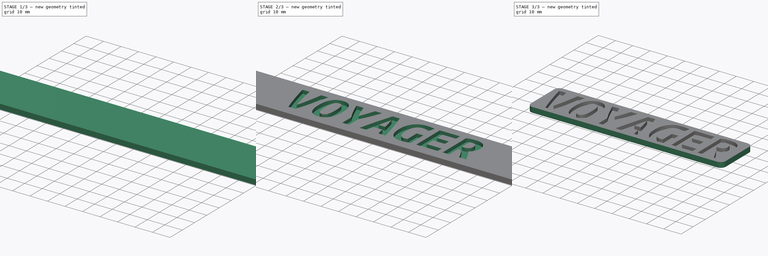
[diagram: build sequence overview — one tinted view per stage of 3, left to right]
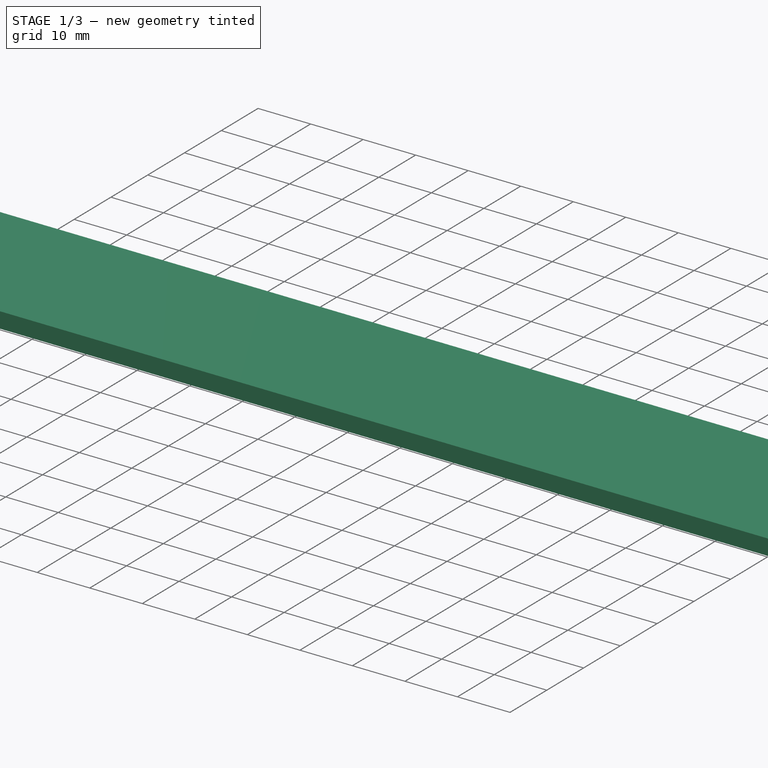
[diagram: stage 1 of 3 — iso view after this stage's code; geometry added in this stage tinted green]
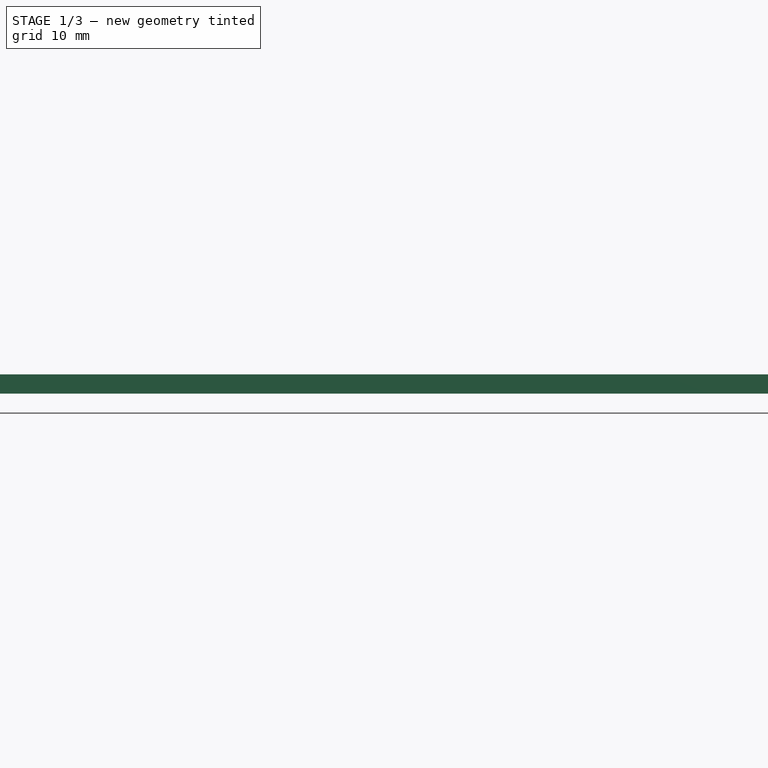
[diagram: stage 1 of 3 — front view after this stage's code; geometry added in this stage tinted green]
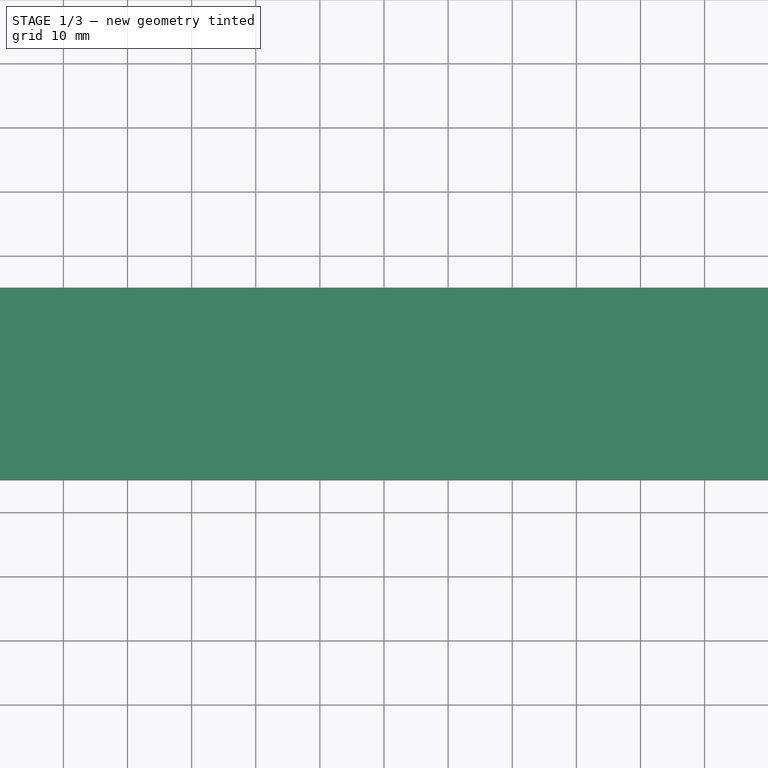
[diagram: stage 1 of 3 — top view after this stage's code; geometry added in this stage tinted green]
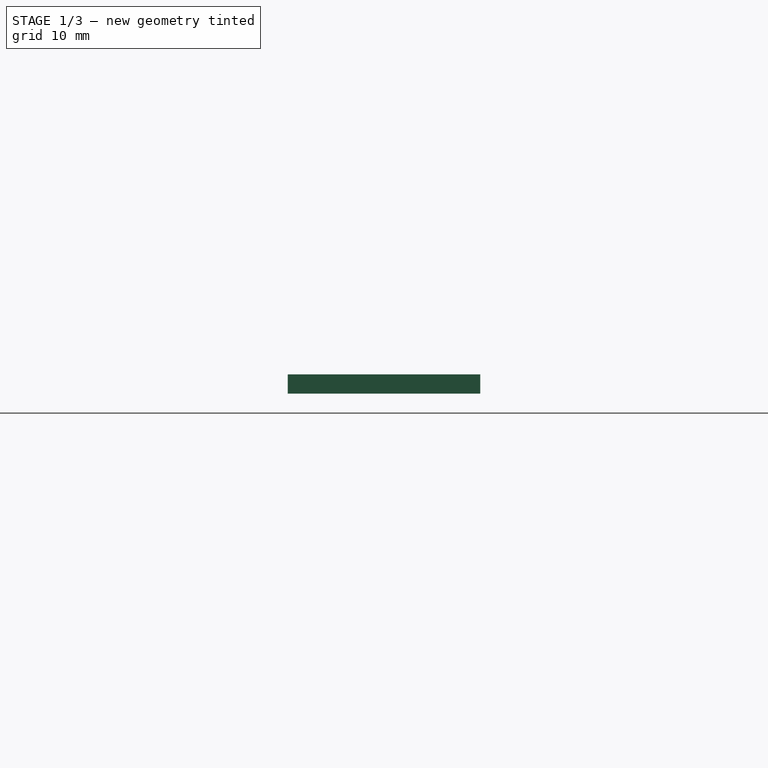
[diagram: stage 1 of 3 — right view after this stage's code; geometry added in this stage tinted green]
FCSTD DOCUMENT  (FreeCAD 1.1R44874 (Git))
Label: placa-Voyager
License: All rights reserved
LicenseURL: http://en.wikipedia.org/wiki/All_rights_reserved
objects: Sketcher::SketchObject×3, PartDesign::Pad×2, PartDesign::Body×2, App::Point×2, Part::Part2DObjectPython×1, Part::Extrusion×1, Part::Cut×1, PartDesign::FeatureBase×1, PartDesign::Pocket×1, PartDesign::Fillet×1
note: 25 computed .brp shape members not serialized (recipe doc carries the construction recipe); baked Part::Feature solids carry a one-line shape summary decoded from their .brp

FEATURE [Sketcher::SketchObject] Sketch
  ArcFitTolerance = 0
  AttachmentSupport = -> [XY_Plane]
  ExternalTypes = [0]
  FullyConstrained = true
  MakeInternals = false
  MapMode = 5
  _ExternalGeoVersion = 0
  sketch-geometry (4):
    g0: LineSegment StartX=-100 StartY=15 StartZ=0 EndX=100 EndY=15 EndZ=0
    g1: LineSegment StartX=100 StartY=15 StartZ=0 EndX=100 EndY=-15 EndZ=0
    g2: LineSegment StartX=100 StartY=-15 StartZ=0 EndX=-100 EndY=-15 EndZ=0
    g3: LineSegment StartX=-100 StartY=-15 StartZ=0 EndX=-100 EndY=15 EndZ=0
  constraints (10):
    c: Coincident(g0,g1)
    c: Coincident(g1,g2)
    c: Coincident(g2,g3)
    c: Coincident(g3,g0)
    c: Horizontal(g2)
    c: Vertical(g1)
    c: Symmetric(g0,g0,g-2)
    c: Symmetric(g2,g0,g-1)
    c: DistanceX(g2,g2) = 200
    c: DistanceY(g3,g3) = 30
FEATURE [PartDesign::Pad] Pad
  Direction = (0,0,1)
  Length = 2
  Length2 = 10
  Profile = -> Sketch
  ReferenceAxis = -> Sketch [N_Axis]
  SideType = 0
  Suppressed = false
  Type = 0
  Type2 = 0
FEATURE [PartDesign::Pad] Pad001
  BaseFeature = -> Pad
  Direction = (0,0,-1)
  Length = 1
  Length2 = 10
  Profile = -> Pad [Face5]
  SideType = 0
  Suppressed = false
  Type = 0
  Type2 = 0
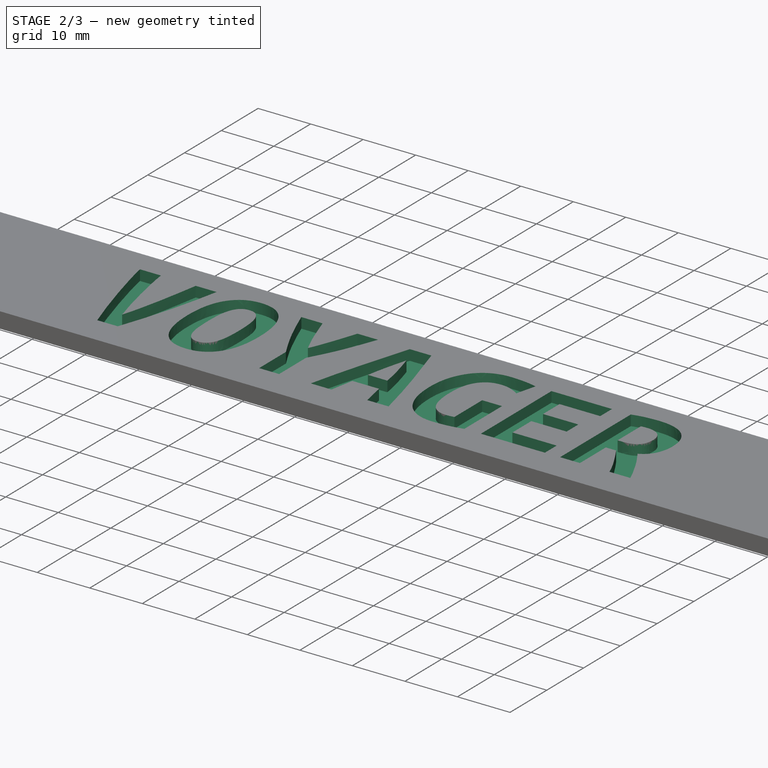
[diagram: stage 2 of 3 — iso view after this stage's code; geometry added in this stage tinted green]
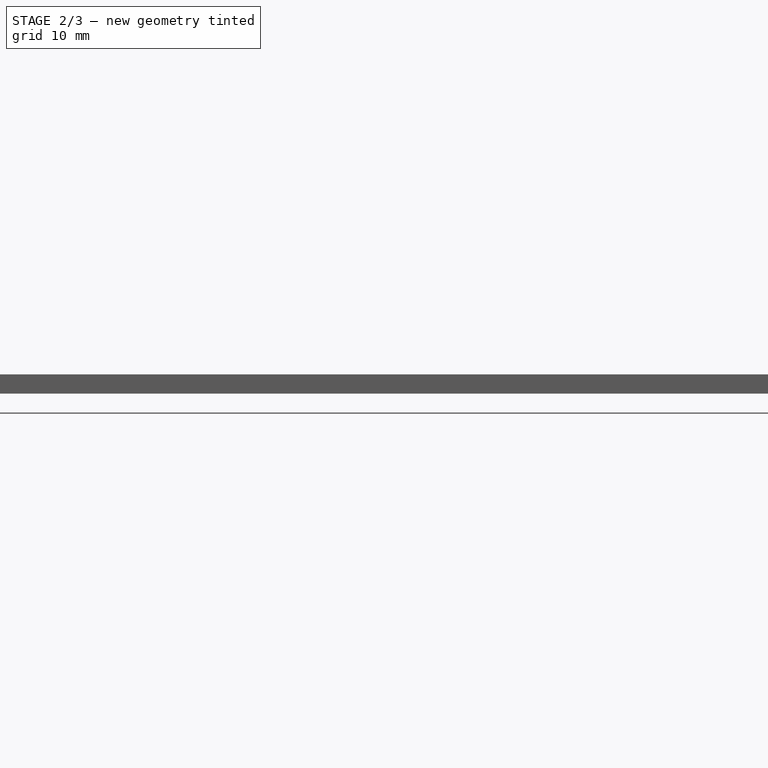
[diagram: stage 2 of 3 — front view after this stage's code; geometry added in this stage tinted green]
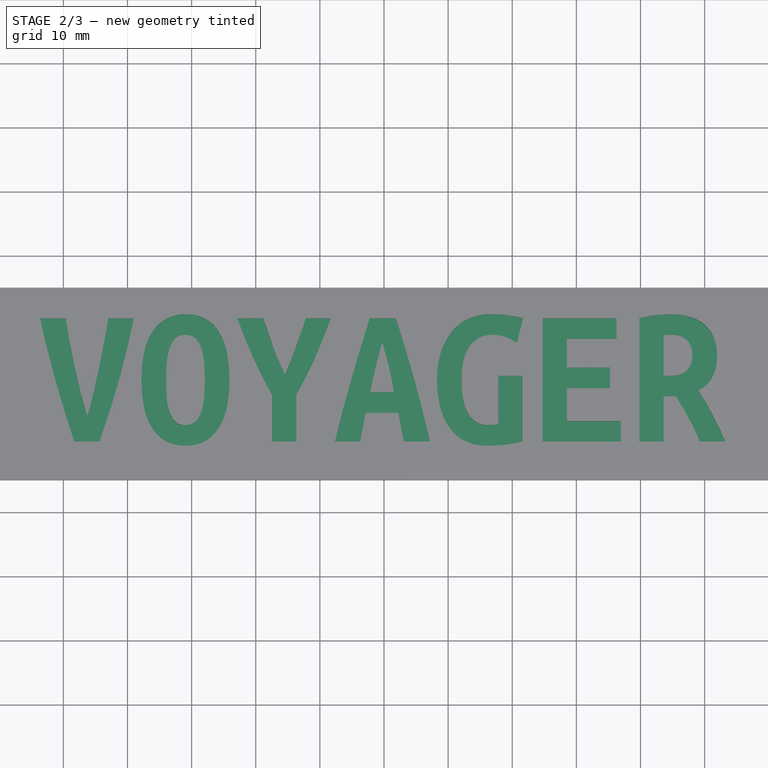
[diagram: stage 2 of 3 — top view after this stage's code; geometry added in this stage tinted green]
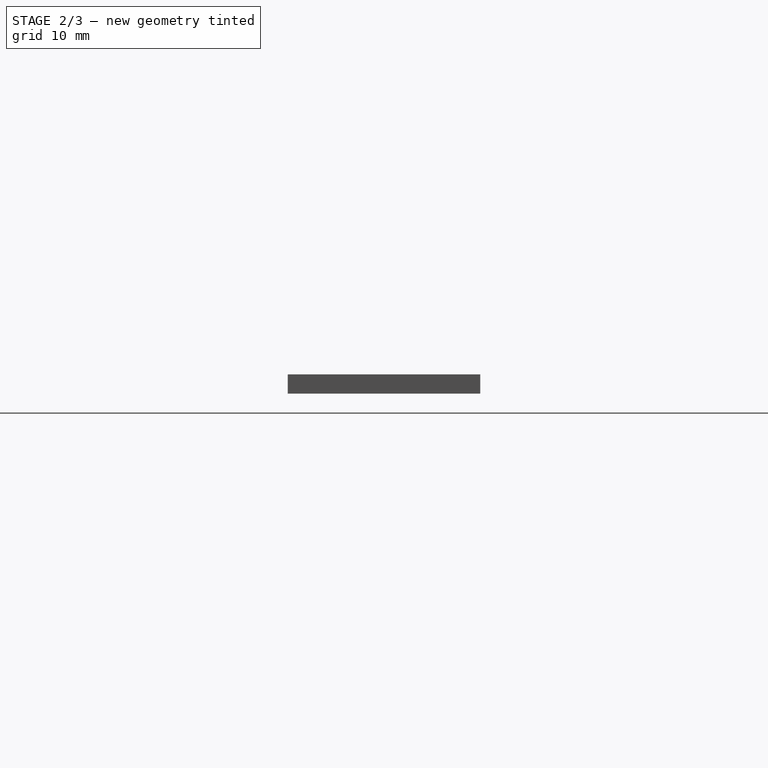
[diagram: stage 2 of 3 — right view after this stage's code; geometry added in this stage tinted green]
FEATURE [Part::Part2DObjectPython] ShapeString  # Draft 2D object (typed FeaturePython)
  FontFile = <userpath>/workspace/trekking/pecas/nome/Ubuntu_Mono/UbuntuMono-Bold.ttf
  Fuse = false
  Justification = 6
  JustificationReference = 0
  KeepLeftMargin = true
  MakeFace = true
  ObliqueAngle = 0
  Placement = pos=(-54,-9,0) rot=(0,0,1;0rad)
  ScaleToSize = false
  Size = 10
  String = VOYAGER
  Tracking = 0
FEATURE [Part::Extrusion] Extrude
  Base = -> ShapeString
  Dir = (0,0,1)
  DirMode = 2
  FaceMakerClass = Part::FaceMakerBullseye
  FaceMakerMode = 3
  InnerWireTaper = 1
  LengthFwd = 10
  LengthRev = 0
  Solid = false
  Symmetric = false
FEATURE [PartDesign::Body] Body
  AllowCompound = false
  Group = -> [Sketch,Pad,Pad001]
  Origin = -> Origin
  Tip = -> Pad001
FEATURE [Part::Cut] Cut
  Base = -> Body
  Tool = -> Extrude
FEATURE [PartDesign::FeatureBase] BaseFeature
  BaseFeature = -> Cut
  Suppressed = false
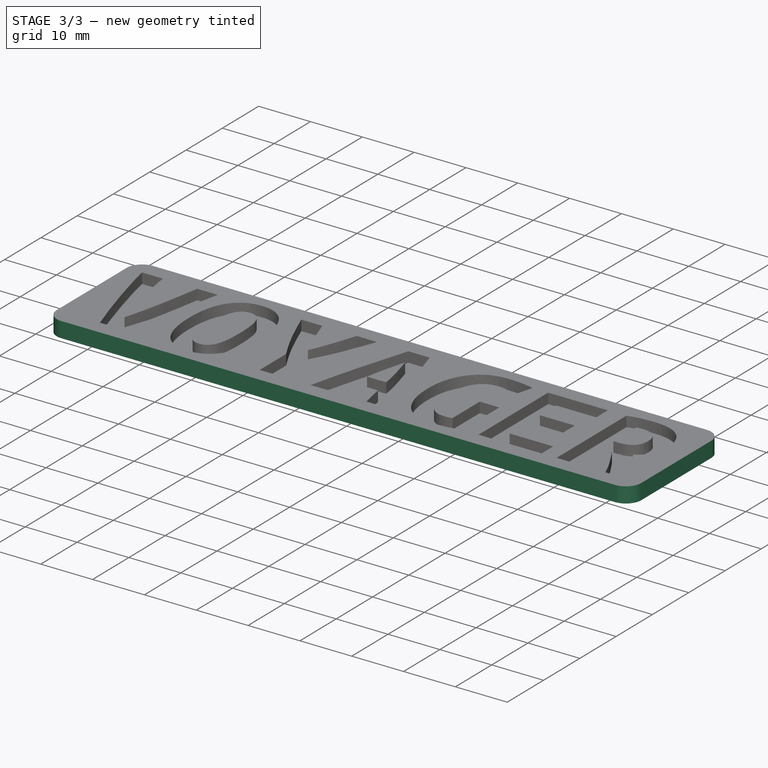
[diagram: stage 3 of 3 — iso view after this stage's code; geometry added in this stage tinted green]
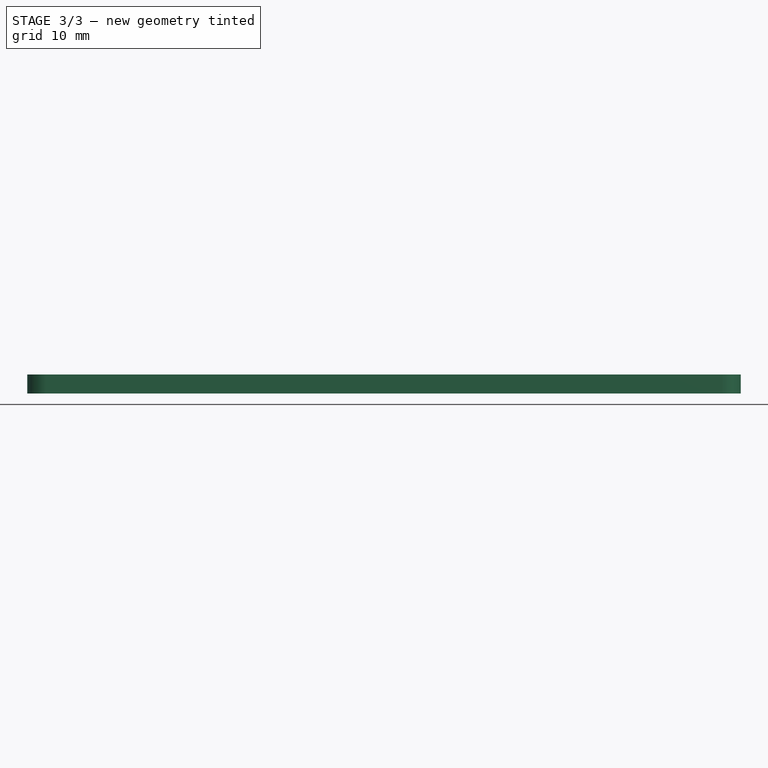
[diagram: stage 3 of 3 — front view after this stage's code; geometry added in this stage tinted green]
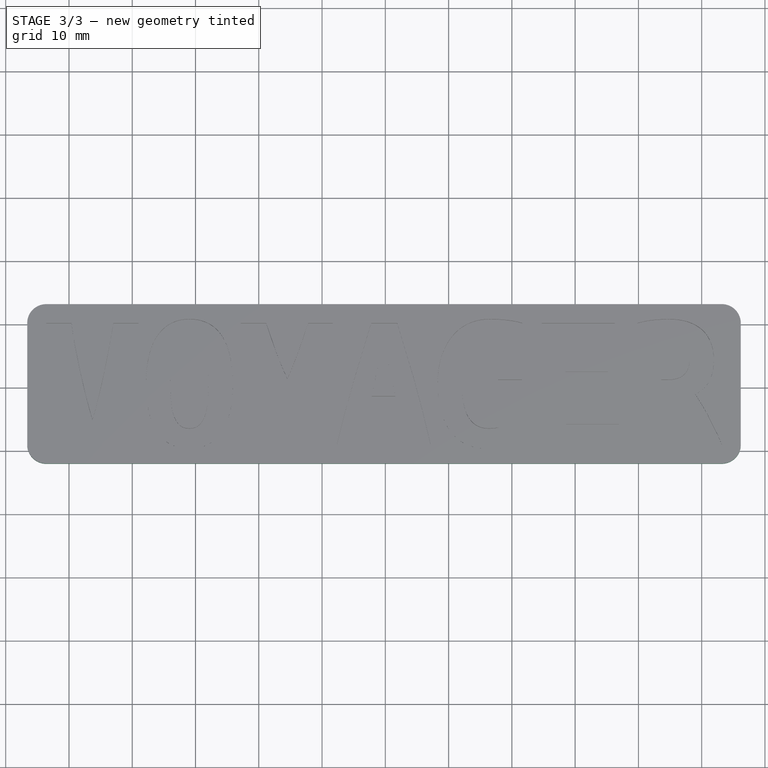
[diagram: stage 3 of 3 — top view after this stage's code; geometry added in this stage tinted green]
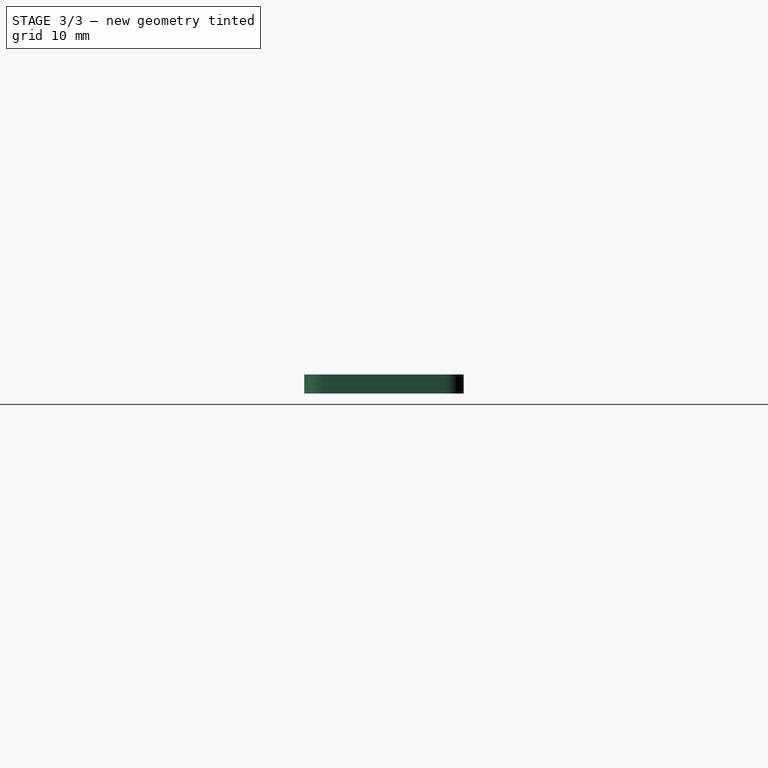
[diagram: stage 3 of 3 — right view after this stage's code; geometry added in this stage tinted green]
FEATURE [Sketcher::SketchObject] Sketch001
  ArcFitTolerance = 0
  AttachmentSupport = -> [BaseFeature]
  ExternalGeometry = -> [BaseFeature]
  ExternalTypes = [0]
  FullyConstrained = true
  MakeInternals = false
  MapMode = 5
  Placement = pos=(0,0,2) rot=(0,0,1;0rad)
  _ExternalGeoVersion = 0
  sketch-geometry (14):
    g0: LineSegment [constr] StartX=-53.6 StartY=10.2 StartZ=0 EndX=53.18 EndY=10.2 EndZ=0
    g1: LineSegment [constr] StartX=53.18 StartY=10.2 StartZ=0 EndX=53.18 EndY=-9 EndZ=0
    g2: LineSegment [constr] StartX=53.18 StartY=-9 StartZ=0 EndX=-53.6 EndY=-9 EndZ=0
    g3: LineSegment [constr] StartX=-53.6 StartY=-9 StartZ=0 EndX=-53.6 EndY=10.2 EndZ=0
    g4: LineSegment [constr] StartX=-0.21 StartY=10.2 StartZ=0 EndX=-0.21 EndY=-9 EndZ=0
    g5: LineSegment [constr] StartX=-53.6 StartY=0.6 StartZ=0 EndX=53.18 EndY=0.6 EndZ=0
    g6: LineSegment StartX=-56.6 StartY=13.2 StartZ=0 EndX=56.18 EndY=13.2 EndZ=0
    g7: LineSegment StartX=56.18 StartY=13.2 StartZ=0 EndX=56.18 EndY=-12 EndZ=0
    g8: LineSegment StartX=56.18 StartY=-12 StartZ=0 EndX=-56.6 EndY=-12 EndZ=0
    g9: LineSegment StartX=-56.6 StartY=-12 StartZ=0 EndX=-56.6 EndY=13.2 EndZ=0
    g10: LineSegment StartX=100 StartY=-15 StartZ=0 EndX=-100 EndY=-15 EndZ=0
    g11: LineSegment StartX=-100 StartY=-15 StartZ=0 EndX=-100 EndY=15 EndZ=0
    g12: LineSegment StartX=-100 StartY=15 StartZ=0 EndX=100 EndY=15 EndZ=0
    g13: LineSegment StartX=100 StartY=15 StartZ=0 EndX=100 EndY=-15 EndZ=0
  constraints (36):
    c: Coincident(g0,g1)
    c: Coincident(g1,g2)
    c: Coincident(g2,g3)
    c: Coincident(g3,g0)
    c: Horizontal(g0)
    c: Horizontal(g2)
    c: Vertical(g1)
    c: Vertical(g3)
    c: Coincident(g0,g-3)
    c: Coincident(g1,g-4)
    c: Symmetric(g2,g0,g5)
    c: PointOnObject(g5,g3)
    c: PointOnObject(g5,g1)
    c: Symmetric(g0,g0,g4)
    c: PointOnObject(g4,g0)
    c: PointOnObject(g4,g2)
    c: Coincident(g6,g7)
    c: Coincident(g7,g8)
    c: Coincident(g8,g9)
    c: Coincident(g9,g6)
    c: Horizontal(g8)
    c: Vertical(g7)
    c: Symmetric(g6,g8,g5)
    c: Symmetric(g6,g6,g4)
    c: DistanceX(g6,g0) = 3
    c: DistanceY(g8,g2) = 3
    c: Coincident(g10,g11)
    c: Coincident(g11,g12)
    c: Coincident(g12,g13)
    c: Coincident(g13,g10)
    c: Horizontal(g10)
    c: Horizontal(g12)
    c: Vertical(g11)
    c: Vertical(g13)
    c: Coincident(g10,g-6)
    c: Coincident(g11,g-5)
FEATURE [PartDesign::Pocket] Pocket
  BaseFeature = -> BaseFeature
  Direction = (0,0,-1)
  Length = 5
  Length2 = 5
  Profile = -> Sketch001
  ReferenceAxis = -> Sketch001 [N_Axis]
  SideType = 0
  Suppressed = false
  Type = 1
  Type2 = 0
FEATURE [PartDesign::Fillet] Fillet
  Base = -> Pocket [Edge125,Edge122,Edge123,Edge120]
  BaseFeature = -> Pocket
  Radius = 3
  SupportTransform = false
  Suppressed = false
  UseAllEdges = false
FEATURE [Sketcher::SketchObject] Sketch002
  ArcFitTolerance = 1e-06
  AttachmentSupport = -> [Fillet]
  ExternalGeometry = -> [Fillet]
  ExternalTypes = [0]
  FullyConstrained = true
  MakeInternals = false
  MapMode = 5
  Placement = pos=(0,0,-1) rot=(1,0,0;3.14159rad)
  _ExternalGeoVersion = 0
  constraints (1):
    c: Distance(g-6,g-7) = 25.2
FEATURE [PartDesign::Body] Body001
  AllowCompound = false
  BaseFeature = -> Cut
  Group = -> [BaseFeature,Sketch001,Pocket,Fillet,Sketch002]
  Origin = -> Origin001
  Tip = -> Fillet
FEATURE [App::Point] Origin002  label="Origem"
  Role = Origin
FEATURE [App::Point] Origin003  label="Origem"
  Role = Origin
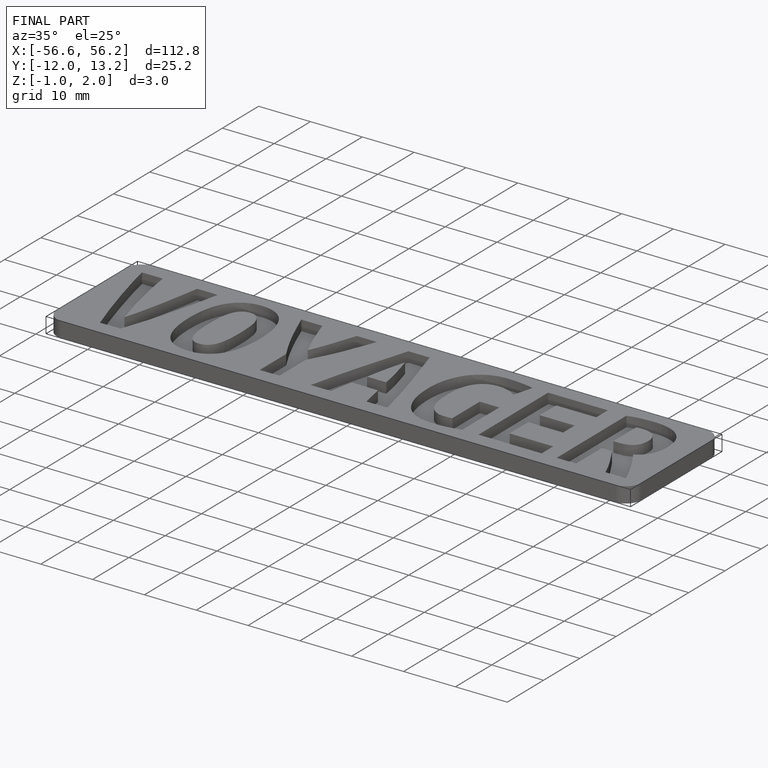
[diagram: finished part — iso view with bounding-box wireframe]
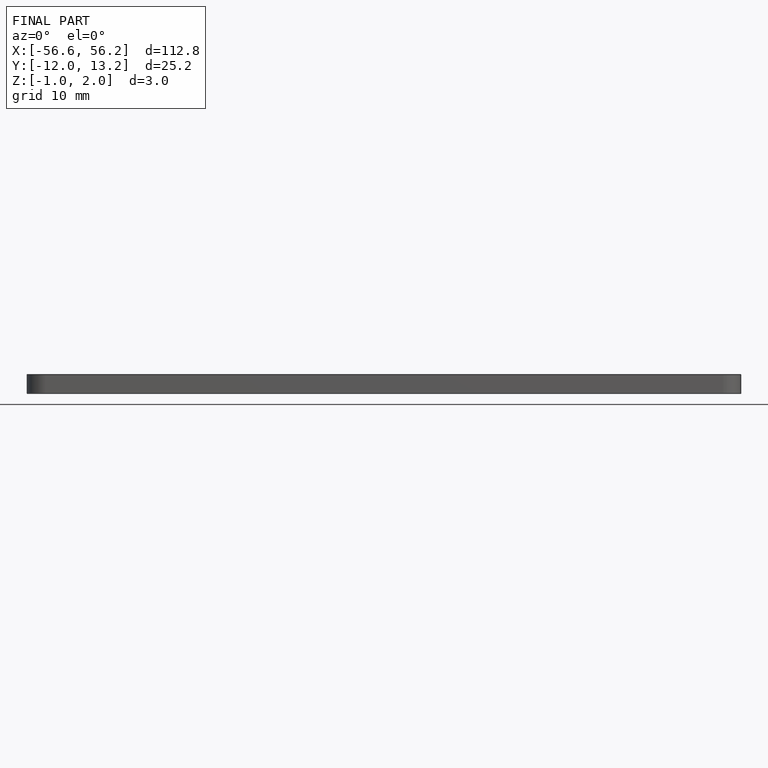
[diagram: finished part — front view with bounding-box wireframe]
